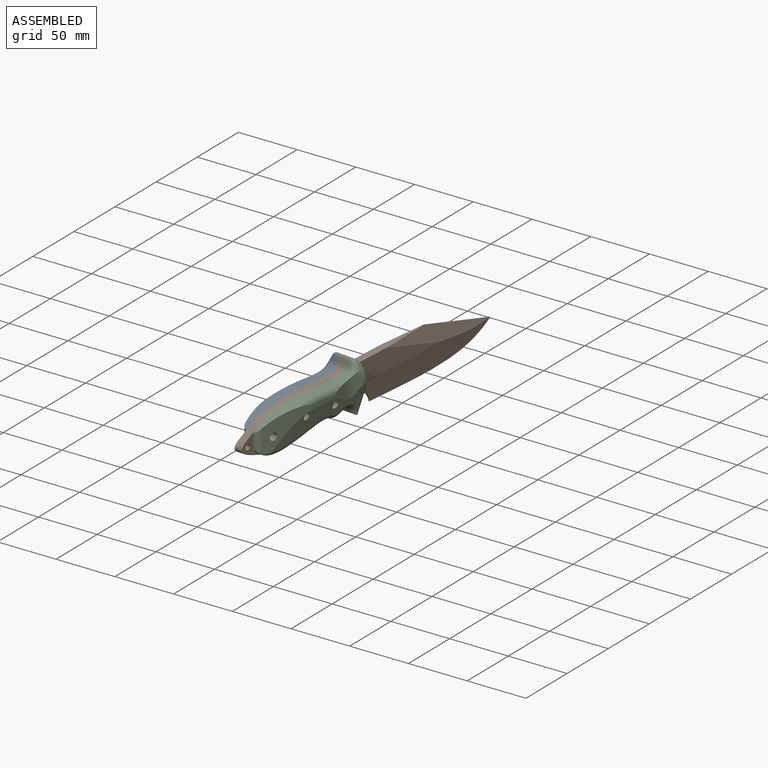
[diagram: assembled view]
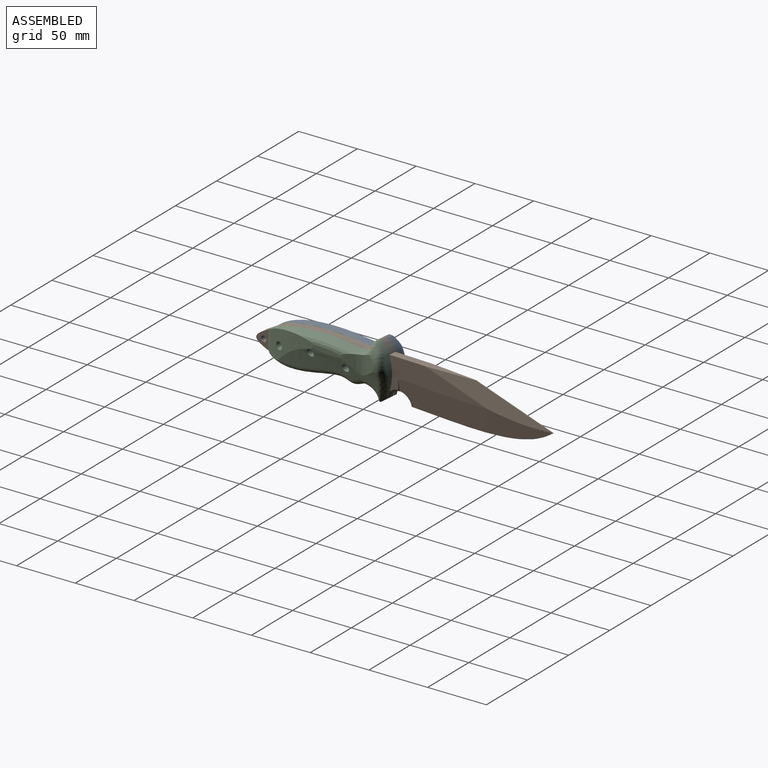
[diagram: assembled view, second angle]
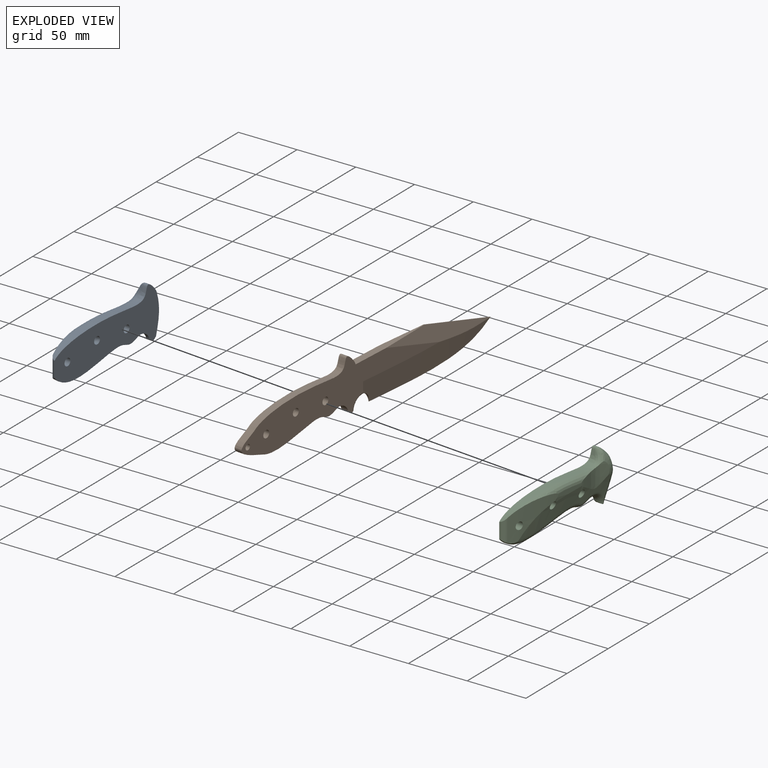
[diagram: exploded view]
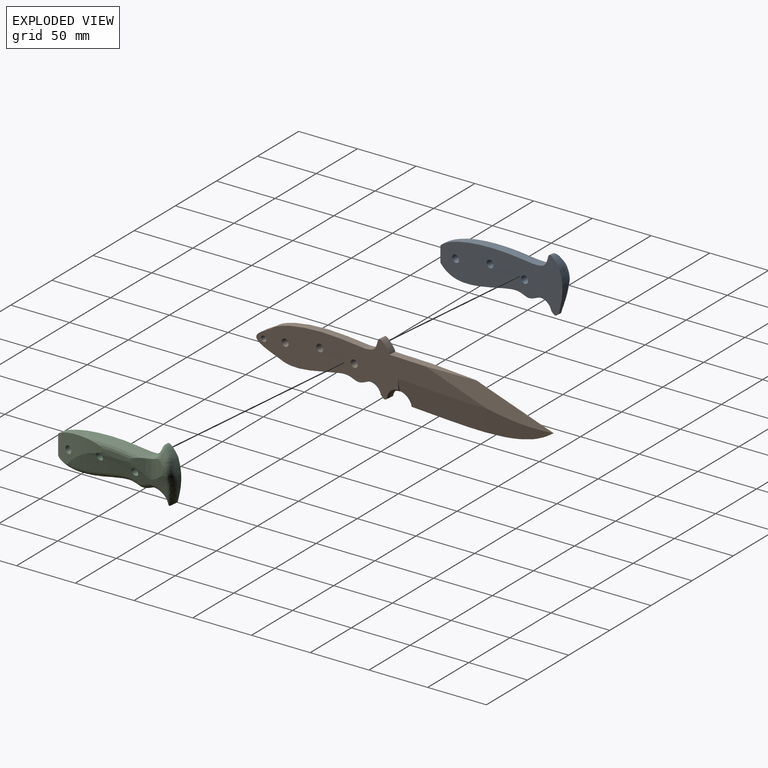
[diagram: exploded view, second angle]
ASSEMBLY  parts=3 mates=2
PART A: 22 faces, bbox 12.9x114.7x48.9 mm
  f0: extruded ~90.71x9.6mm, area 193.2mm2, adj f2,f11,f19,f21
  f1: extruded ~109.63x23.1mm, area 700.4mm2, adj f7,f8,f11,f15,f16,f18,f19
  f2: cylinder r=9.53mm len=11.08mm, axis (1,0,0), area 35.7mm2, adj f0,f3,f11,f20,f21
  f3: extruded ~6.94x5.28mm, area 33.9mm2, adj f2,f4,f11,f13,f20
  f4: cylinder r=9.53mm len=1.18mm, axis (1,0,0), area 0.7mm2, adj f3,f7,f11,f13,f14
  f5: cylinder r=3.17mm len=11.17mm, axis (1,0,0), area 203.7mm2, adj f8,f11,f12
  f6: cylinder r=3.17mm len=10.42mm, axis (1,0,0), area 207.8mm2, adj f11,f12
  f7: extruded ~32.92x6.4mm, area 141.7mm2, adj f1,f4,f11,f14,f15
  f8: extruded ~45.76x27.76mm, area 661.5mm2, adj f1,f5,f10,f12,f18,f19,f21
  f9: extruded ~30.02x18.01mm, area 337.7mm2, adj f12,f18
  f10: cylinder r=3.17mm len=6.55mm, axis (1,0,0), area 130.6mm2, adj f8,f11
  f11: plane 114.73x48.91mm, normal (1,0,0), area 3148.6mm2, adj f0,f1,f2,f3,f4,f5,f6,f7
  f12: extruded ~93.6x35.38mm, area 1224.7mm2, adj f5,f6,f8,f9,f14,f15,f18,f20
  f13: bspline ~5.71x5.59mm, area 10.4mm2, adj f3,f4,f14,f20
  f14: bspline ~37.72x10.46mm, area 267.8mm2, adj f4,f7,f12,f13,f15,f20
  f15: bspline ~9.66x9.48mm, area 57.4mm2, adj f1,f7,f12,f14,f17
  f16: bspline ~4.6x2.75mm, area 6.3mm2, adj f1,f17,f18
  f17: bspline ~5.68x5.56mm, area 23.5mm2, adj f15,f16,f18
  f18: bspline ~99.46x25.01mm, area 471mm2, adj f1,f8,f9,f12,f16,f17
  f19: cylinder r=5.08mm len=19.27mm, axis (0,0,-1), area 100.6mm2, adj f0,f1,f8,f11,f21
  f20: bspline ~19.64x14.78mm, area 131.6mm2, adj f2,f3,f12,f13,f14,f21
  f21: bspline ~92.19x13.81mm, area 605.6mm2, adj f0,f2,f8,f12,f19,f20
PART B: 23 faces, bbox 6.4x271.5x48.7 mm
  f0: extruded ~22.1x21.21mm, area 274.2mm2, adj f1,f10,f13,f14
  f1: extruded ~81.22x9.58mm, area 528.9mm2, adj f0,f2,f13,f14
  f2: cylinder r=9.53mm len=11.08mm, axis (-1,0,0), area 91mm2, adj f1,f3,f13,f14
  f3: extruded ~6.94x6.35mm, area 49.4mm2, adj f2,f4,f13,f14,f21,f22
  f4: cylinder r=9.53mm len=18.79mm, axis (-1,0,0), area 64.4mm2, adj f3,f5,f16,f18,f21,f22
  f5: extruded ~130.18x19.05mm, area 56.4mm2, adj f4,f6,f16,f18
  f6: plane 71.19x19.18mm, normal (0,0.26,0.97), area 37.1mm2, adj f5,f7,f16,f18,f19,f20
  f7: plane 76.88x6.35mm, normal (0,-0.03,1), area 361.2mm2, adj f6,f10,f13,f14,f19,f20
  f8: cylinder r=3.17mm len=6.35mm, axis (-1,0,0), area 126.7mm2, adj f13,f14
  f9: cylinder r=3.17mm len=6.35mm, axis (-1,0,0), area 126.7mm2, adj f13,f14
  f10: extruded ~108.45x22.01mm, area 769.4mm2, adj f0,f7,f13,f14
  f11: cylinder r=2.38mm len=6.35mm, axis (-1,0,0), area 95mm2, adj f13,f14
  f12: cylinder r=3.17mm len=6.35mm, axis (-1,0,0), area 126.7mm2, adj f13,f14
  f13: plane 213.12x48.65mm, normal (1,0,0), area 4351.7mm2, adj f0,f1,f2,f3,f7,f8,f9,f10
  f14: plane 213.12x48.65mm, normal (-1,0,0), area 4351.7mm2, adj f0,f1,f2,f3,f7,f8,f9,f10
  f15: plane 10.25x1.54mm, normal (0,1,0), area 7.2mm2, adj f14,f16,f21
  f16: bspline ~140.02x35.83mm, area 2268.3mm2, adj f4,f5,f6,f14,f15,f20,f21
  f17: plane 10.25x1.54mm, normal (0,1,0), area 7.2mm2, adj f13,f18,f22
  f18: bspline ~140.02x35.83mm, area 2266.6mm2, adj f4,f5,f6,f13,f17,f19,f22
  f19: plane 115.04x20.06mm, normal (0.98,0.06,0.21), area 953.8mm2, adj f6,f7,f13,f18
  f20: plane 115.04x20.06mm, normal (-0.98,0.06,0.21), area 953.8mm2, adj f6,f7,f14,f16
  f21: torus R=11.36mm, axis (1,0,0), area 43.1mm2, adj f3,f4,f14,f15,f16
  f22: torus R=11.36mm, axis (1,0,0), area 43.1mm2, adj f3,f4,f13,f17,f18
PART C: 23 faces, bbox 12.9x114.7x48.9 mm
  f0: extruded ~90.71x9.6mm, area 193.2mm2, adj f1,f20,f21,f22
  f1: plane 114.73x48.91mm, normal (-1,0,0), area 3148.6mm2, adj f0,f2,f14,f15,f16,f17,f18,f19
  f2: extruded ~6.94x5.28mm, area 33.9mm2, adj f1,f3,f13,f14,f22
  f3: bspline ~5.71x5.59mm, area 10.4mm2, adj f2,f4,f13,f14
  f4: bspline ~35.67x10.46mm, area 267.8mm2, adj f3,f5,f12,f13,f14,f15
  f5: bspline ~9.66x9.48mm, area 57.4mm2, adj f4,f6,f11,f12,f15,f16
  f6: bspline ~4.43x4.04mm, area 10.7mm2, adj f5,f7,f10
  f7: bspline ~99.42x24.87mm, area 472.2mm2, adj f6,f8,f9,f10,f11,f12,f16
  f8: extruded ~45.76x27.76mm, area 661.5mm2, adj f7,f12,f16,f18,f19,f20,f21
  f9: extruded ~30.02x18.01mm, area 337.7mm2, adj f7,f12
  f10: bspline ~4.6x2.75mm, area 6.2mm2, adj f6,f7,f16
  f11: bspline ~3.11x2.66mm, area 1.6mm2, adj f5,f7
  f12: extruded ~93.6x35.38mm, area 1224.7mm2, adj f4,f5,f7,f8,f9,f13,f17,f18
  f13: bspline ~21.13x14.8mm, area 131.6mm2, adj f2,f3,f4,f12,f21,f22
  f14: cylinder r=9.53mm len=1.18mm, axis (-1,0,0), area 0.7mm2, adj f1,f2,f3,f4,f15
  f15: extruded ~32.92x6.4mm, area 141.7mm2, adj f1,f4,f5,f14,f16
  f16: extruded ~109.63x23.1mm, area 700.4mm2, adj f1,f5,f7,f8,f10,f15,f20
  f17: cylinder r=3.17mm len=10.42mm, axis (-1,0,0), area 207.8mm2, adj f1,f12
  f18: cylinder r=3.17mm len=11.17mm, axis (-1,0,0), area 203.7mm2, adj f1,f8,f12
  f19: cylinder r=3.17mm len=6.55mm, axis (-1,0,0), area 130.6mm2, adj f1,f8
  f20: cylinder r=5.08mm len=19.27mm, axis (0,0,-1), area 100.6mm2, adj f0,f1,f8,f16,f21
  f21: bspline ~91.56x13.81mm, area 605.6mm2, adj f0,f8,f12,f13,f20,f22
  f22: cylinder r=9.53mm len=11.08mm, axis (-1,0,0), area 35.7mm2, adj f0,f1,f2,f13,f21
PLACE A rot(axis=(0,0,-1),5.6deg) t=(-69.64,-30.59,-3.67)mm
PLACE B rot(axis=(0,0,-1),5.6deg) t=(-66.07,-26.73,30.18)mm
PLACE C rot(axis=(0,0,-1),5.6deg) t=(-63.32,-31.21,-3.67)mm
MATE fastened A.f5 <-> B.f8  axis (1,-0.1,0) through (-76.49,-100.47,32.62)mm
MATE fastened C.f17 <-> B.f12  axis (-1,0.1,0) through (-67.08,-69.52,30.18)mm
